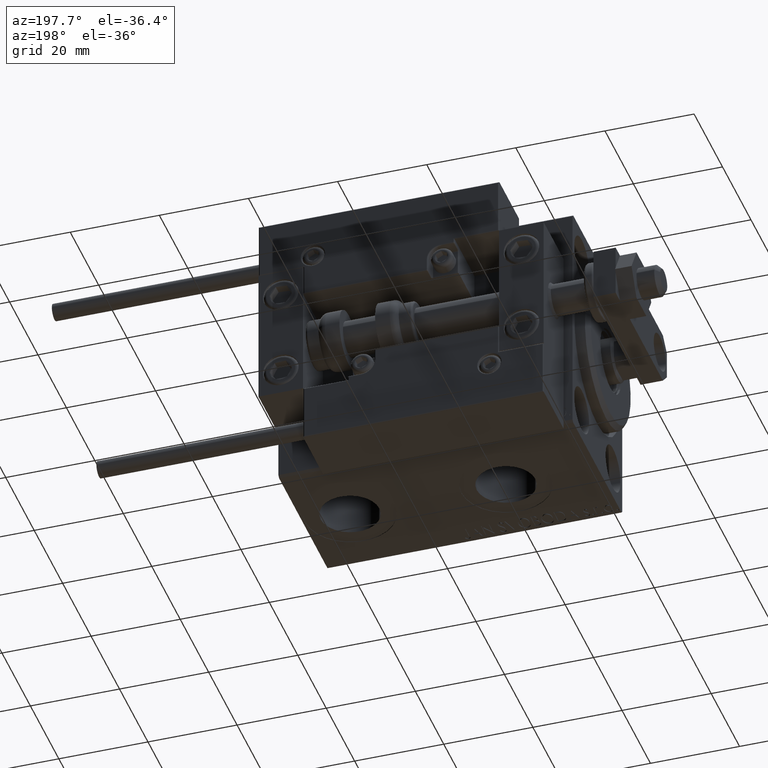
[diagram: clean part render]
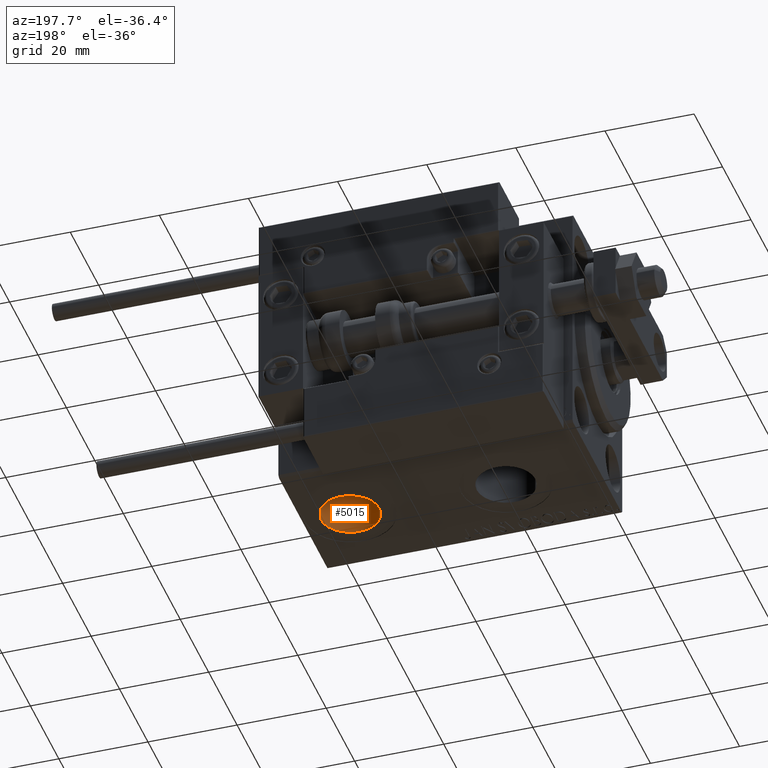
[diagram: same view with one face highlighted and labeled with its STEP entity id]
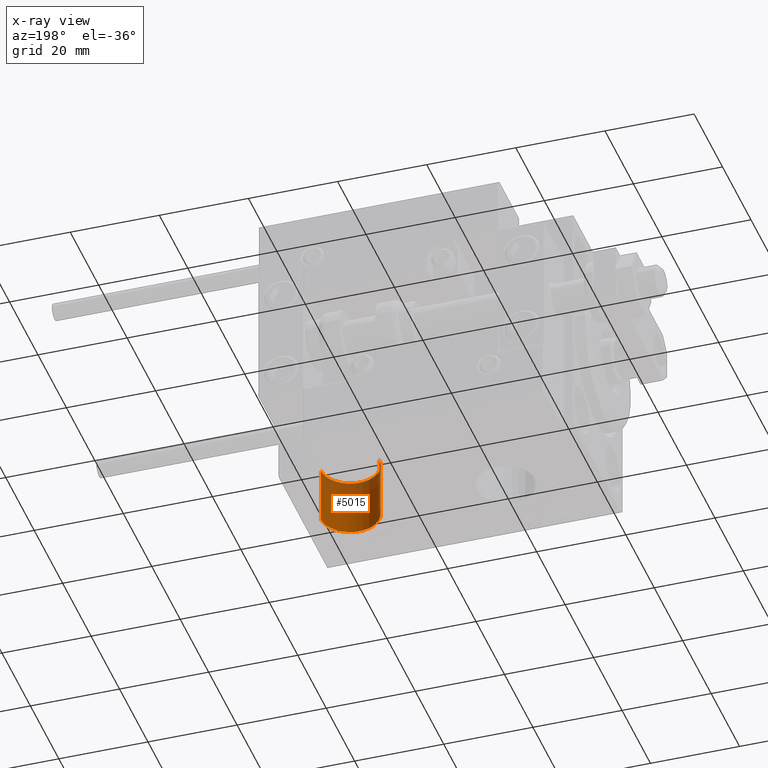
[diagram: x-ray of the same camera — body ghosted, the highlighted face saturated]
A machine part, auxiliary view. The second image highlights one B-rep face of the part: STEP entity #5015.
The next image is the same camera in x-ray: the body ghosted, the highlighted face saturated — about 23% of this face is hidden behind the body in this view.
In plain terms, the highlighted cylindrical surface (edge-blend (fillet) strip) has radius 6.58 mm, axis along (-0, -0, -1).
Its self-contained STEP definition (entity closure, byte-faithful):
#1043 = CARTESIAN_POINT ( 'NONE',  ( 48.92000000000000171, -6.938893903907228378E-15, -14.50000000000000355 ) ) ;
#3339 = EDGE_CURVE ( 'NONE', #41115, #41354, #30757, .T. ) ;
#5015 = ADVANCED_FACE ( 'NONE', ( #50088 ), #15671, .F. ) ;
#6436 = CARTESIAN_POINT ( 'NONE',  ( 62.08000000000000540, -6.133076310068269336E-15, -27.40000000000000568 ) ) ;
#7032 = DIRECTION ( 'NONE',  ( -0.000000000000000000, -0.000000000000000000, -1.000000000000000000 ) ) ;
#7230 = DIRECTION ( 'NONE',  ( -1.000000000000000000, 0.000000000000000000, 0.000000000000000000 ) ) ;
#8427 = DIRECTION ( 'NONE',  ( -0.000000000000000000, -0.000000000000000000, -1.000000000000000000 ) ) ;
#9516 = ORIENTED_EDGE ( 'NONE', *, *, #24430, .T. ) ;
#9957 = CARTESIAN_POINT ( 'NONE',  ( 62.08000000000000540, -6.133076310068269336E-15, -14.50000000000000355 ) ) ;
#14025 = CARTESIAN_POINT ( 'NONE',  ( 48.92000000000000171, -6.938893903907228378E-15, -27.40000000000000568 ) ) ;
#14175 = CIRCLE ( 'NONE', #39369, 6.580000000000002736 ) ;
#14209 = AXIS2_PLACEMENT_3D ( 'NONE', #19238, #7032, #35032 ) ;
#15226 = CARTESIAN_POINT ( 'NONE',  ( 48.92000000000000171, -6.938893903907228378E-15, -14.50000000000000355 ) ) ;
#15671 = CYLINDRICAL_SURFACE ( 'NONE', #14209, 6.580000000000002736 ) ;
#17198 = CARTESIAN_POINT ( 'NONE',  ( 62.08000000000000540, -6.133076310068269336E-15, -14.50000000000000355 ) ) ;
#19238 = CARTESIAN_POINT ( 'NONE',  ( 55.50000000000000000, -6.938893903907228378E-15, -14.50000000000000355 ) ) ;
#19640 = LINE ( 'NONE', #1043, #46353 ) ;
#23403 = EDGE_CURVE ( 'NONE', #29299, #41354, #19640, .T. ) ;
#24430 = EDGE_CURVE ( 'NONE', #42500, #41115, #48443, .T. ) ;
#29299 = VERTEX_POINT ( 'NONE', #15226 ) ;
#30147 = CARTESIAN_POINT ( 'NONE',  ( 55.50000000000000000, -6.938893903907228378E-15, -27.40000000000000568 ) ) ;
#30757 = CIRCLE ( 'NONE', #37241, 6.580000000000002736 ) ;
#31127 = ORIENTED_EDGE ( 'NONE', *, *, #43024, .F. ) ;
#33468 = DIRECTION ( 'NONE',  ( 0.000000000000000000, 0.000000000000000000, -1.000000000000000000 ) ) ;
#35032 = DIRECTION ( 'NONE',  ( -1.000000000000000000, 0.000000000000000000, 0.000000000000000000 ) ) ;
#37241 = AXIS2_PLACEMENT_3D ( 'NONE', #30147, #33468, #7230 ) ;
#38460 = CARTESIAN_POINT ( 'NONE',  ( 55.50000000000000000, -6.938893903907228378E-15, -14.50000000000000355 ) ) ;
#39369 = AXIS2_PLACEMENT_3D ( 'NONE', #38460, #41785, #42035 ) ;
#41032 = DIRECTION ( 'NONE',  ( -0.000000000000000000, -0.000000000000000000, -1.000000000000000000 ) ) ;
#41115 = VERTEX_POINT ( 'NONE', #6436 ) ;
#41354 = VERTEX_POINT ( 'NONE', #14025 ) ;
#41697 = ORIENTED_EDGE ( 'NONE', *, *, #3339, .T. ) ;
#41785 = DIRECTION ( 'NONE',  ( 0.000000000000000000, 0.000000000000000000, -1.000000000000000000 ) ) ;
#42035 = DIRECTION ( 'NONE',  ( -1.000000000000000000, 0.000000000000000000, 0.000000000000000000 ) ) ;
#42500 = VERTEX_POINT ( 'NONE', #17198 ) ;
#43024 = EDGE_CURVE ( 'NONE', #42500, #29299, #14175, .T. ) ;
#44337 = ORIENTED_EDGE ( 'NONE', *, *, #23403, .F. ) ;
#46353 = VECTOR ( 'NONE', #8427, 1000.000000000000000 ) ;
#47978 = VECTOR ( 'NONE', #41032, 1000.000000000000000 ) ;
#48443 = LINE ( 'NONE', #9957, #47978 ) ;
#50088 = FACE_OUTER_BOUND ( 'NONE', #50411, .T. ) ;
#50411 = EDGE_LOOP ( 'NONE', ( #31127, #9516, #41697, #44337 ) ) ;